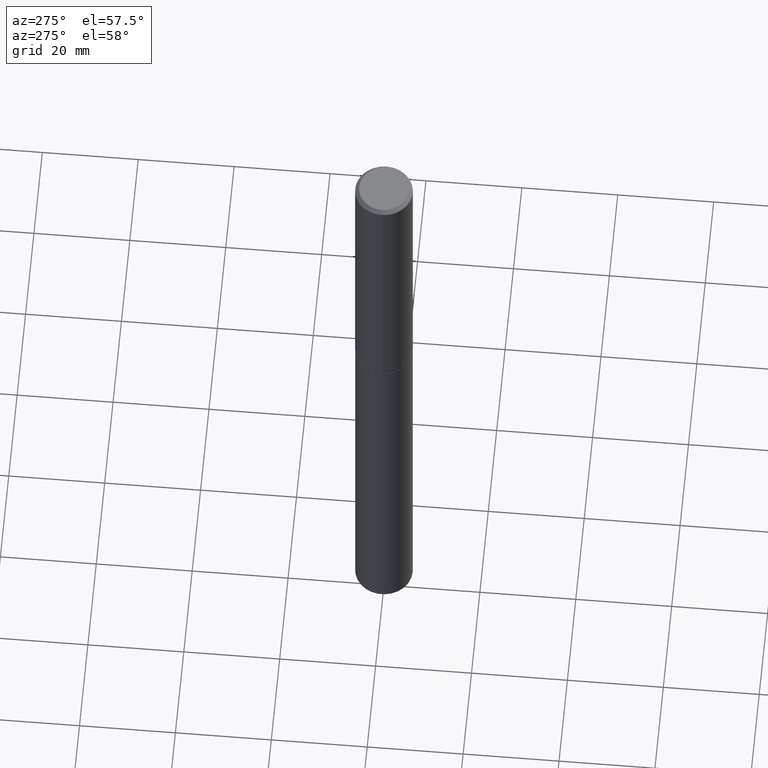
[diagram: clean part render]
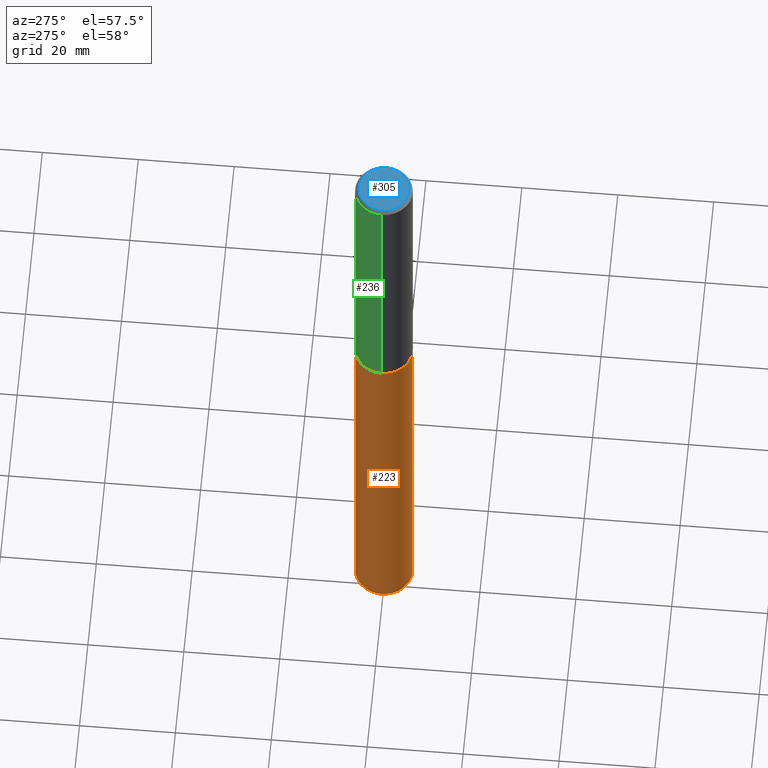
[diagram: same view with three faces highlighted in distinct colors, each labeled with its STEP entity id]
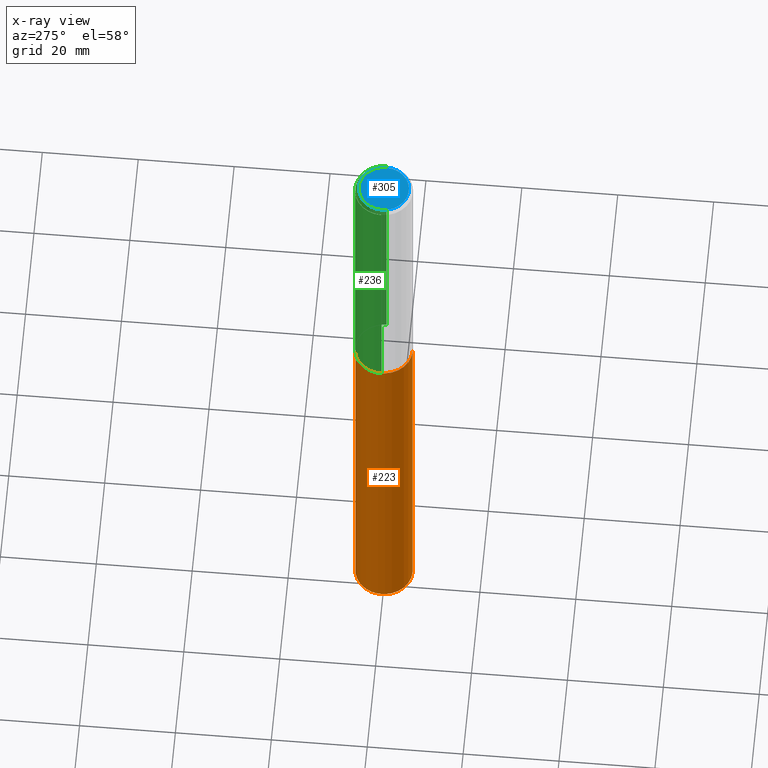
[diagram: x-ray of the same camera — body ghosted, the three highlighted faces saturated]
A machine part, auxiliary view with three faces highlighted in distinct colors.
The next image is the same camera in x-ray (body ghosted, the three faces saturated) — at least one of them is partly hidden behind the body in this view.
Their STEP definitions:

[orange] entity #223 — the highlighted cylindrical surface (edge-blend (fillet) strip) has radius 5.9995 mm, axis along (-0, 0, 1).
#5 = CARTESIAN_POINT ( 'NONE',  ( 1.419029179448476620E-28, -2.026199705678029935E-14, -5.802976721785690017 ) ) ;
#11 = FACE_OUTER_BOUND ( 'NONE', #256, .T. ) ;
#13 = VECTOR ( 'NONE', #186, 39.37007874015748143 ) ;
#19 = CYLINDRICAL_SURFACE ( 'NONE', #294, 0.2361999999999999933 ) ;
#21 = EDGE_CURVE ( 'NONE', #264, #336, #67, .T. ) ;
#58 = DIRECTION ( 'NONE',  ( -2.445258590381302040E-29, 3.491782379838977394E-15, 1.000000000000000000 ) ) ;
#64 = LINE ( 'NONE', #345, #85 ) ;
#67 = LINE ( 'NONE', #246, #13 ) ;
#68 = DIRECTION ( 'NONE',  ( -6.982962677686265922E-15, -1.000000000000000000, 3.469747663417777397E-15 ) ) ;
#85 = VECTOR ( 'NONE', #58, 39.37007874015748143 ) ;
#99 = CARTESIAN_POINT ( 'NONE',  ( 1.678301941865498784E-15, 0.2361999999999914723, -2.440900000000000070 ) ) ;
#106 = AXIS2_PLACEMENT_3D ( 'NONE', #5, #361, #313 ) ;
#108 = EDGE_CURVE ( 'NONE', #336, #292, #373, .T. ) ;
#121 = CARTESIAN_POINT ( 'NONE',  ( 5.969144809017297917E-29, -8.522356799982231388E-15, -2.440899999999999181 ) ) ;
#153 = CARTESIAN_POINT ( 'NONE',  ( -1.649375784469436177E-15, -0.2362000000000085420, -2.440899999999998293 ) ) ;
#160 = ORIENTED_EDGE ( 'NONE', *, *, #231, .T. ) ;
#186 = DIRECTION ( 'NONE',  ( -2.445258590381302040E-29, 3.491782379838977394E-15, 1.000000000000000000 ) ) ;
#223 = ADVANCED_FACE ( 'NONE', ( #11 ), #19, .T. ) ;
#231 = EDGE_CURVE ( 'NONE', #372, #292, #64, .T. ) ;
#237 = DIRECTION ( 'NONE',  ( -2.445258590381302040E-29, 3.491782379838977394E-15, 1.000000000000000000 ) ) ;
#240 = CIRCLE ( 'NONE', #106, 0.2361999999999999933 ) ;
#246 = CARTESIAN_POINT ( 'NONE',  ( 1.678301941865416150E-15, 0.2361999999999914723, -2.440900000000000070 ) ) ;
#251 = AXIS2_PLACEMENT_3D ( 'NONE', #121, #354, #68 ) ;
#256 = EDGE_LOOP ( 'NONE', ( #332, #290, #160, #387 ) ) ;
#264 = VERTEX_POINT ( 'NONE', #270 ) ;
#270 = CARTESIAN_POINT ( 'NONE',  ( 1.678301941865498389E-15, 0.2361999999999797595, -5.802976721785690906 ) ) ;
#290 = ORIENTED_EDGE ( 'NONE', *, *, #325, .T. ) ;
#292 = VERTEX_POINT ( 'NONE', #153 ) ;
#294 = AXIS2_PLACEMENT_3D ( 'NONE', #374, #237, #379 ) ;
#299 = CARTESIAN_POINT ( 'NONE',  ( -1.649375784469354333E-15, -0.2362000000000202826, -5.802976721785689129 ) ) ;
#313 = DIRECTION ( 'NONE',  ( -6.982962677686265922E-15, -1.000000000000000000, 4.626330217890369336E-15 ) ) ;
#325 = EDGE_CURVE ( 'NONE', #264, #372, #240, .T. ) ;
#332 = ORIENTED_EDGE ( 'NONE', *, *, #21, .F. ) ;
#336 = VERTEX_POINT ( 'NONE', #99 ) ;
#345 = CARTESIAN_POINT ( 'NONE',  ( -1.649375784469436177E-15, -0.2362000000000085420, -2.440899999999998293 ) ) ;
#354 = DIRECTION ( 'NONE',  ( -2.445258590381302040E-29, 3.491782379838977394E-15, 1.000000000000000000 ) ) ;
#361 = DIRECTION ( 'NONE',  ( -2.445258590381302040E-29, 3.491782379838977394E-15, 1.000000000000000000 ) ) ;
#372 = VERTEX_POINT ( 'NONE', #299 ) ;
#373 = CIRCLE ( 'NONE', #251, 0.2361999999999999933 ) ;
#374 = CARTESIAN_POINT ( 'NONE',  ( 5.969144809017297917E-29, -8.522356799982231388E-15, -2.440899999999999181 ) ) ;
#379 = DIRECTION ( 'NONE',  ( -6.982962677686265922E-15, -1.000000000000000000, 3.469747663417777397E-15 ) ) ;
#387 = ORIENTED_EDGE ( 'NONE', *, *, #108, .F. ) ;

[blue] entity #305 — the highlighted planar face has unit normal (0, -0, -1).
#10 = DIRECTION ( 'NONE',  ( 2.438088387897960049E-29, -3.491481338843145188E-15, -1.000000000000000000 ) ) ;
#41 = FACE_OUTER_BOUND ( 'NONE', #140, .T. ) ;
#46 = CARTESIAN_POINT ( 'NONE',  ( -0.2049499999999999933, 1.485712596711223663E-15, 1.200153863154214623E-18 ) ) ;
#61 = DIRECTION ( 'NONE',  ( 1.000000000000000000, -6.982962677686266711E-15, 4.876234172754136290E-29 ) ) ;
#66 = AXIS2_PLACEMENT_3D ( 'NONE', #320, #119, #61 ) ;
#78 = DIRECTION ( 'NONE',  ( -1.000000000000000000, 6.982962677686265922E-15, -4.876176775795935793E-29 ) ) ;
#119 = DIRECTION ( 'NONE',  ( -2.445468806185136597E-29, 3.491481338843145583E-15, 1.000000000000000000 ) ) ;
#134 = EDGE_CURVE ( 'NONE', #137, #174, #238, .T. ) ;
#137 = VERTEX_POINT ( 'NONE', #46 ) ;
#140 = EDGE_LOOP ( 'NONE', ( #329, #304 ) ) ;
#154 = DIRECTION ( 'NONE',  ( -2.445468806185136597E-29, 3.491481338843145583E-15, 1.000000000000000000 ) ) ;
#158 = CARTESIAN_POINT ( 'NONE',  ( -1.467469417495579720E-47, 2.095157408489530689E-33, 6.000769315822069813E-19 ) ) ;
#174 = VERTEX_POINT ( 'NONE', #316 ) ;
#238 = CIRCLE ( 'NONE', #66, 0.2049499999999999933 ) ;
#249 = PLANE ( 'NONE',  #289 ) ;
#255 = DIRECTION ( 'NONE',  ( 1.000000000000000000, -6.982962677686266711E-15, 4.876234172754136290E-29 ) ) ;
#289 = AXIS2_PLACEMENT_3D ( 'NONE', #158, #10, #78 ) ;
#295 = CIRCLE ( 'NONE', #368, 0.2049499999999999933 ) ;
#297 = EDGE_CURVE ( 'NONE', #174, #137, #295, .T. ) ;
#304 = ORIENTED_EDGE ( 'NONE', *, *, #297, .T. ) ;
#305 = ADVANCED_FACE ( 'NONE', ( #41 ), #249, .F. ) ;
#316 = CARTESIAN_POINT ( 'NONE',  ( 0.2049499999999999933, -1.567808741777880040E-15, 1.200153863174899881E-18 ) ) ;
#320 = CARTESIAN_POINT ( 'NONE',  ( -2.934938834991159440E-47, 4.190314816979061378E-33, 1.200153863164413963E-18 ) ) ;
#329 = ORIENTED_EDGE ( 'NONE', *, *, #134, .T. ) ;
#368 = AXIS2_PLACEMENT_3D ( 'NONE', #389, #154, #255 ) ;
#389 = CARTESIAN_POINT ( 'NONE',  ( -2.934938834991159440E-47, 4.190314816979061378E-33, 1.200153863164413963E-18 ) ) ;

[green] entity #236 — the highlighted cylindrical surface (edge-blend (fillet) strip) has radius 5.9995 mm, axis along (-0, 0, 1).
#1 = VERTEX_POINT ( 'NONE', #124 ) ;
#6 = ORIENTED_EDGE ( 'NONE', *, *, #323, .T. ) ;
#8 = AXIS2_PLACEMENT_3D ( 'NONE', #122, #71, #272 ) ;
#31 = CARTESIAN_POINT ( 'NONE',  ( 0.2362000000000001321, -1.649375784469497117E-15, 1.151752954443000789E-29 ) ) ;
#36 = EDGE_CURVE ( 'NONE', #155, #335, #105, .T. ) ;
#45 = CIRCLE ( 'NONE', #75, 0.2361999999999999933 ) ;
#50 = ORIENTED_EDGE ( 'NONE', *, *, #327, .F. ) ;
#71 = DIRECTION ( 'NONE',  ( -2.445468806185136597E-29, 3.491481338843145583E-15, 1.000000000000000000 ) ) ;
#75 = AXIS2_PLACEMENT_3D ( 'NONE', #131, #97, #254 ) ;
#95 = ORIENTED_EDGE ( 'NONE', *, *, #36, .T. ) ;
#96 = EDGE_CURVE ( 'NONE', #155, #364, #296, .T. ) ;
#97 = DIRECTION ( 'NONE',  ( -2.445468806185136597E-29, 3.491481338843145583E-15, 1.000000000000000000 ) ) ;
#102 = LINE ( 'NONE', #163, #138 ) ;
#104 = CARTESIAN_POINT ( 'NONE',  ( 0.2361999999999999933, -1.758484576308345231E-15, -0.03125000000000021511 ) ) ;
#105 = CIRCLE ( 'NONE', #8, 0.2362000000000002709 ) ;
#122 = CARTESIAN_POINT ( 'NONE',  ( 5.967922074614205116E-29, -8.520611059312809095E-15, -2.440399999999999014 ) ) ;
#124 = CARTESIAN_POINT ( 'NONE',  ( -0.2361999999999999933, -2.636557983710470337E-15, -0.03125000000000021511 ) ) ;
#131 = CARTESIAN_POINT ( 'NONE',  ( 7.642090019328603538E-31, -1.091087918388490390E-16, -0.03125000000000021511 ) ) ;
#138 = VECTOR ( 'NONE', #194, 39.37007874015748143 ) ;
#142 = FACE_OUTER_BOUND ( 'NONE', #150, .T. ) ;
#150 = EDGE_LOOP ( 'NONE', ( #95, #6, #50, #170 ) ) ;
#155 = VERTEX_POINT ( 'NONE', #333 ) ;
#163 = CARTESIAN_POINT ( 'NONE',  ( -0.2362000000000001321, 1.678301941865357577E-15, -1.161852468318209457E-29 ) ) ;
#170 = ORIENTED_EDGE ( 'NONE', *, *, #96, .F. ) ;
#179 = DIRECTION ( 'NONE',  ( -2.445468806185136877E-29, 3.491481338843145188E-15, 1.000000000000000000 ) ) ;
#194 = DIRECTION ( 'NONE',  ( -2.445468806185136877E-29, 3.491481338843145188E-15, 1.000000000000000000 ) ) ;
#207 = CARTESIAN_POINT ( 'NONE',  ( 0.000000000000000000, 0.000000000000000000, 0.000000000000000000 ) ) ;
#218 = CARTESIAN_POINT ( 'NONE',  ( -0.2362000000000002709, -6.842309117447451124E-15, -2.440399999999999014 ) ) ;
#229 = AXIS2_PLACEMENT_3D ( 'NONE', #207, #268, #386 ) ;
#236 = ADVANCED_FACE ( 'NONE', ( #142 ), #340, .T. ) ;
#254 = DIRECTION ( 'NONE',  ( 1.000000000000000000, -6.982962677686266711E-15, 0.000000000000000000 ) ) ;
#263 = VECTOR ( 'NONE', #179, 39.37007874015748143 ) ;
#268 = DIRECTION ( 'NONE',  ( -2.445468806185136597E-29, 3.491481338843145583E-15, 1.000000000000000000 ) ) ;
#272 = DIRECTION ( 'NONE',  ( 1.000000000000000000, -6.982962677686269077E-15, 0.000000000000000000 ) ) ;
#296 = LINE ( 'NONE', #31, #263 ) ;
#323 = EDGE_CURVE ( 'NONE', #335, #1, #102, .T. ) ;
#327 = EDGE_CURVE ( 'NONE', #364, #1, #45, .T. ) ;
#333 = CARTESIAN_POINT ( 'NONE',  ( 0.2362000000000002709, -1.016998684378230720E-14, -2.440399999999999014 ) ) ;
#335 = VERTEX_POINT ( 'NONE', #218 ) ;
#340 = CYLINDRICAL_SURFACE ( 'NONE', #229, 0.2362000000000001321 ) ;
#364 = VERTEX_POINT ( 'NONE', #104 ) ;
#386 = DIRECTION ( 'NONE',  ( 1.000000000000000000, -6.982962677686266711E-15, 4.876176775795936353E-29 ) ) ;